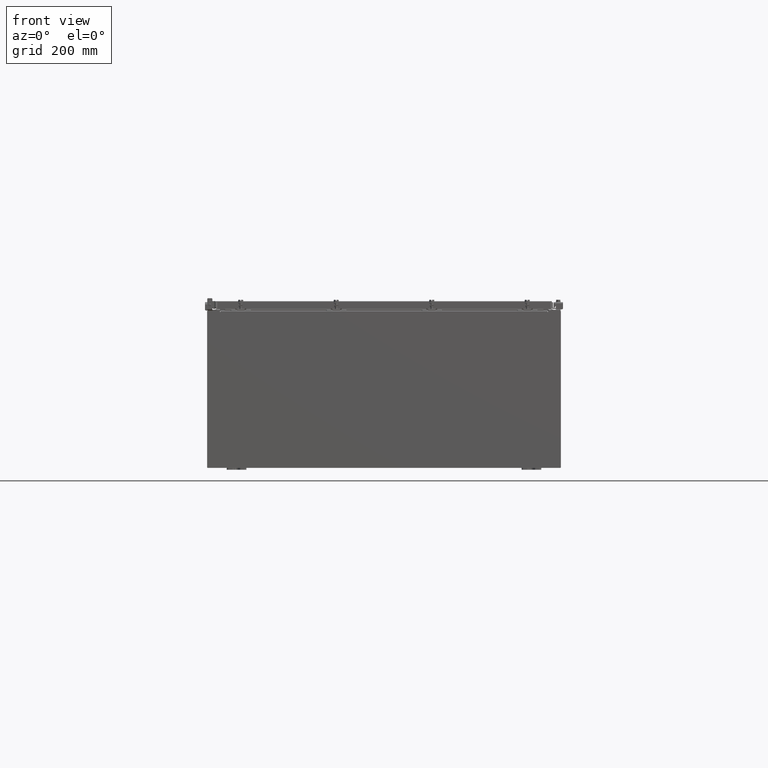
[diagram: clean part render]
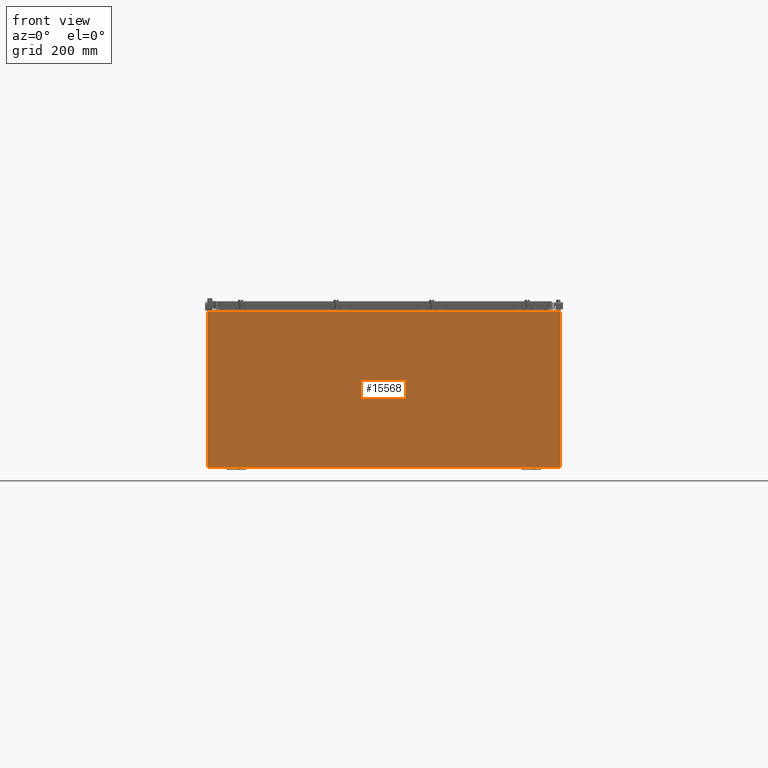
[diagram: same view with one face highlighted and labeled with its STEP entity id]
A machine part, front view. The second image highlights one B-rep face of the part: STEP entity #15568.
In plain terms, the highlighted planar face has unit normal (-0, 1, -0).
Its self-contained STEP definition (entity closure, byte-faithful):
#38 = VECTOR ( 'NONE', #22416, 39.37007874015748100 ) ;
#57 = ORIENTED_EDGE ( 'NONE', *, *, #26609, .T. ) ;
#973 = VERTEX_POINT ( 'NONE', #27461 ) ;
#1019 = DIRECTION ( 'NONE',  ( 0.0000000000000000000, 0.0000000000000000000, -1.000000000000000000 ) ) ;
#1454 = CARTESIAN_POINT ( 'NONE',  ( -17.92530000000000000, 0.0000000000000000000, -7.925299999999997300 ) ) ;
#1534 = EDGE_CURVE ( 'NONE', #2563, #7111, #18806, .T. ) ;
#1712 = ORIENTED_EDGE ( 'NONE', *, *, #7139, .T. ) ;
#2375 = DIRECTION ( 'NONE',  ( -0.0000000000000000000, 1.000000000000000000, -0.0000000000000000000 ) ) ;
#2541 = EDGE_CURVE ( 'NONE', #26351, #24565, #25179, .T. ) ;
#2563 = VERTEX_POINT ( 'NONE', #4178 ) ;
#2648 = CARTESIAN_POINT ( 'NONE',  ( 17.92530000000000000, 0.0000000000000000000, 7.925300000000000000 ) ) ;
#3287 = ORIENTED_EDGE ( 'NONE', *, *, #14808, .F. ) ;
#3555 = VECTOR ( 'NONE', #25727, 39.37007874015748100 ) ;
#4178 = CARTESIAN_POINT ( 'NONE',  ( 17.92530000000000000, 0.0000000000000000000, -7.925299999999997300 ) ) ;
#4371 = CARTESIAN_POINT ( 'NONE',  ( 16.67455000000000000, 0.0000000000000000000, 7.874950000000001900 ) ) ;
#4418 = CARTESIAN_POINT ( 'NONE',  ( -17.92530000000000000, 0.0000000000000000000, 7.925300000000001800 ) ) ;
#4553 = DIRECTION ( 'NONE',  ( 0.0000000000000000000, 0.0000000000000000000, 1.000000000000000000 ) ) ;
#4922 = ORIENTED_EDGE ( 'NONE', *, *, #1534, .T. ) ;
#5242 = CARTESIAN_POINT ( 'NONE',  ( 16.63720000000000400, 0.0000000000000000000, 7.912300000000001900 ) ) ;
#5408 = CARTESIAN_POINT ( 'NONE',  ( 0.0000000000000000000, 0.0000000000000000000, 0.0000000000000000000 ) ) ;
#6113 = CIRCLE ( 'NONE', #25471, 0.01867499999999949400 ) ;
#6131 = VECTOR ( 'NONE', #22927, 39.37007874015748100 ) ;
#6136 = DIRECTION ( 'NONE',  ( -8.681145560800387200E-014, 0.0000000000000000000, -1.000000000000000000 ) ) ;
#6854 = VECTOR ( 'NONE', #20696, 39.37007874015748100 ) ;
#7044 = ORIENTED_EDGE ( 'NONE', *, *, #25780, .F. ) ;
#7111 = VERTEX_POINT ( 'NONE', #8189 ) ;
#7139 = EDGE_CURVE ( 'NONE', #24381, #2563, #21609, .T. ) ;
#7495 = VERTEX_POINT ( 'NONE', #11919 ) ;
#7501 = DIRECTION ( 'NONE',  ( 0.0000000000000000000, -1.000000000000000000, 0.0000000000000000000 ) ) ;
#8189 = CARTESIAN_POINT ( 'NONE',  ( -17.92530000000000000, 0.0000000000000000000, -7.925299999999997300 ) ) ;
#8233 = VERTEX_POINT ( 'NONE', #5242 ) ;
#8566 = EDGE_CURVE ( 'NONE', #973, #8233, #15213, .T. ) ;
#8597 = CARTESIAN_POINT ( 'NONE',  ( -17.92530000000000000, 0.0000000000000000000, 7.925300000000001800 ) ) ;
#9058 = CARTESIAN_POINT ( 'NONE',  ( -16.67455000000000000, 0.0000000000000000000, 7.874950000000001900 ) ) ;
#9548 = VECTOR ( 'NONE', #16794, 39.37007874015748100 ) ;
#10139 = LINE ( 'NONE', #19092, #15841 ) ;
#11448 = EDGE_CURVE ( 'NONE', #26351, #24381, #10139, .T. ) ;
#11529 = DIRECTION ( 'NONE',  ( -0.0000000000000000000, 1.000000000000000000, -0.0000000000000000000 ) ) ;
#11919 = CARTESIAN_POINT ( 'NONE',  ( -17.92530000000000000, 0.0000000000000000000, 7.925300000000001800 ) ) ;
#11944 = LINE ( 'NONE', #26627, #38 ) ;
#12127 = ORIENTED_EDGE ( 'NONE', *, *, #27398, .T. ) ;
#12649 = DIRECTION ( 'NONE',  ( 1.000000000000000000, 0.0000000000000000000, -6.096072018129154100E-017 ) ) ;
#12675 = CIRCLE ( 'NONE', #26066, 0.01867499999999949400 ) ;
#12706 = ORIENTED_EDGE ( 'NONE', *, *, #8566, .F. ) ;
#12818 = ORIENTED_EDGE ( 'NONE', *, *, #11448, .T. ) ;
#12839 = EDGE_CURVE ( 'NONE', #16807, #13828, #6113, .T. ) ;
#12929 = DIRECTION ( 'NONE',  ( -0.0000000000000000000, -0.0000000000000000000, 1.000000000000000000 ) ) ;
#13042 = CARTESIAN_POINT ( 'NONE',  ( -16.63720000000000400, -0.0000000000000000000, 7.874950000000001900 ) ) ;
#13828 = VERTEX_POINT ( 'NONE', #9058 ) ;
#14117 = CARTESIAN_POINT ( 'NONE',  ( 16.67455000000000700, 0.0000000000000000000, 7.925300000000000000 ) ) ;
#14312 = CARTESIAN_POINT ( 'NONE',  ( 17.92530000000000000, 0.0000000000000000000, 7.925300000000000000 ) ) ;
#14313 = FACE_OUTER_BOUND ( 'NONE', #21603, .T. ) ;
#14808 = EDGE_CURVE ( 'NONE', #24565, #973, #12675, .T. ) ;
#15065 = CARTESIAN_POINT ( 'NONE',  ( 16.65587500000000200, 0.0000000000000000000, 7.874950000000001900 ) ) ;
#15213 = LINE ( 'NONE', #17837, #9548 ) ;
#15568 = ADVANCED_FACE ( 'NONE', ( #14313 ), #18048, .F. ) ;
#15589 = VERTEX_POINT ( 'NONE', #22370 ) ;
#15648 = ORIENTED_EDGE ( 'NONE', *, *, #2541, .F. ) ;
#15841 = VECTOR ( 'NONE', #12649, 39.37007874015748100 ) ;
#15947 = VECTOR ( 'NONE', #1019, 39.37007874015748100 ) ;
#16257 = ORIENTED_EDGE ( 'NONE', *, *, #23441, .T. ) ;
#16794 = DIRECTION ( 'NONE',  ( 0.0000000000000000000, 0.0000000000000000000, 1.000000000000000000 ) ) ;
#16807 = VERTEX_POINT ( 'NONE', #13042 ) ;
#17207 = DIRECTION ( 'NONE',  ( 0.0000000000000000000, 0.0000000000000000000, -1.000000000000000000 ) ) ;
#17837 = CARTESIAN_POINT ( 'NONE',  ( 16.63720000000000400, 0.0000000000000000000, 0.0000000000000000000 ) ) ;
#18048 = PLANE ( 'NONE',  #24448 ) ;
#18063 = EDGE_CURVE ( 'NONE', #13828, #15589, #21177, .T. ) ;
#18481 = CARTESIAN_POINT ( 'NONE',  ( 16.67454999999931800, -0.0000000000000000000, -1.447541957108381700E-012 ) ) ;
#18536 = CARTESIAN_POINT ( 'NONE',  ( -16.63720000000000400, -0.0000000000000000000, 0.0000000000000000000 ) ) ;
#18806 = LINE ( 'NONE', #1454, #6131 ) ;
#18886 = LINE ( 'NONE', #18536, #6854 ) ;
#19092 = CARTESIAN_POINT ( 'NONE',  ( -17.92530000000000000, 0.0000000000000000000, 7.925300000000001800 ) ) ;
#19469 = VECTOR ( 'NONE', #6136, 39.37007874015748100 ) ;
#19974 = CARTESIAN_POINT ( 'NONE',  ( -16.63720000000000400, -2.356218894535426900E-015, 7.912300000000008100 ) ) ;
#20162 = VECTOR ( 'NONE', #4553, 39.37007874015748100 ) ;
#20696 = DIRECTION ( 'NONE',  ( 0.0000000000000000000, 0.0000000000000000000, -1.000000000000000000 ) ) ;
#20820 = VECTOR ( 'NONE', #12929, 39.37007874015748100 ) ;
#21100 = ORIENTED_EDGE ( 'NONE', *, *, #12839, .F. ) ;
#21177 = LINE ( 'NONE', #25828, #20162 ) ;
#21603 = EDGE_LOOP ( 'NONE', ( #23980, #21100, #7044, #16257, #12706, #3287, #15648, #12818, #1712, #4922, #12127, #57 ) ) ;
#21609 = LINE ( 'NONE', #2648, #15947 ) ;
#21859 = LINE ( 'NONE', #8597, #3555 ) ;
#22370 = CARTESIAN_POINT ( 'NONE',  ( -16.67455000000000000, 0.0000000000000000000, 7.925300000000001800 ) ) ;
#22416 = DIRECTION ( 'NONE',  ( 1.000000000000000000, 0.0000000000000000000, 0.0000000000000000000 ) ) ;
#22464 = DIRECTION ( 'NONE',  ( 0.0000000000000000000, -0.0000000000000000000, -1.000000000000000000 ) ) ;
#22760 = VERTEX_POINT ( 'NONE', #19974 ) ;
#22927 = DIRECTION ( 'NONE',  ( -1.000000000000000000, -0.0000000000000000000, -0.0000000000000000000 ) ) ;
#23441 = EDGE_CURVE ( 'NONE', #22760, #8233, #11944, .T. ) ;
#23980 = ORIENTED_EDGE ( 'NONE', *, *, #18063, .F. ) ;
#24349 = CARTESIAN_POINT ( 'NONE',  ( -16.65587500000000200, 0.0000000000000000000, 7.874950000000001900 ) ) ;
#24381 = VERTEX_POINT ( 'NONE', #14312 ) ;
#24448 = AXIS2_PLACEMENT_3D ( 'NONE', #5408, #7501, #22464 ) ;
#24565 = VERTEX_POINT ( 'NONE', #4371 ) ;
#25179 = LINE ( 'NONE', #18481, #19469 ) ;
#25471 = AXIS2_PLACEMENT_3D ( 'NONE', #24349, #11529, #26500 ) ;
#25727 = DIRECTION ( 'NONE',  ( 1.000000000000000000, 0.0000000000000000000, -6.096072018129154100E-017 ) ) ;
#25780 = EDGE_CURVE ( 'NONE', #22760, #16807, #18886, .T. ) ;
#25828 = CARTESIAN_POINT ( 'NONE',  ( -16.67455000000000000, -0.0000000000000000000, 0.0000000000000000000 ) ) ;
#26066 = AXIS2_PLACEMENT_3D ( 'NONE', #15065, #2375, #17207 ) ;
#26351 = VERTEX_POINT ( 'NONE', #14117 ) ;
#26500 = DIRECTION ( 'NONE',  ( 0.0000000000000000000, 0.0000000000000000000, -1.000000000000000000 ) ) ;
#26609 = EDGE_CURVE ( 'NONE', #7495, #15589, #21859, .T. ) ;
#26627 = CARTESIAN_POINT ( 'NONE',  ( -16.63720000000000400, -2.356218894535426900E-015, 7.912300000000008100 ) ) ;
#27216 = LINE ( 'NONE', #4418, #20820 ) ;
#27398 = EDGE_CURVE ( 'NONE', #7111, #7495, #27216, .T. ) ;
#27461 = CARTESIAN_POINT ( 'NONE',  ( 16.63720000000000400, 0.0000000000000000000, 7.874950000000001900 ) ) ;